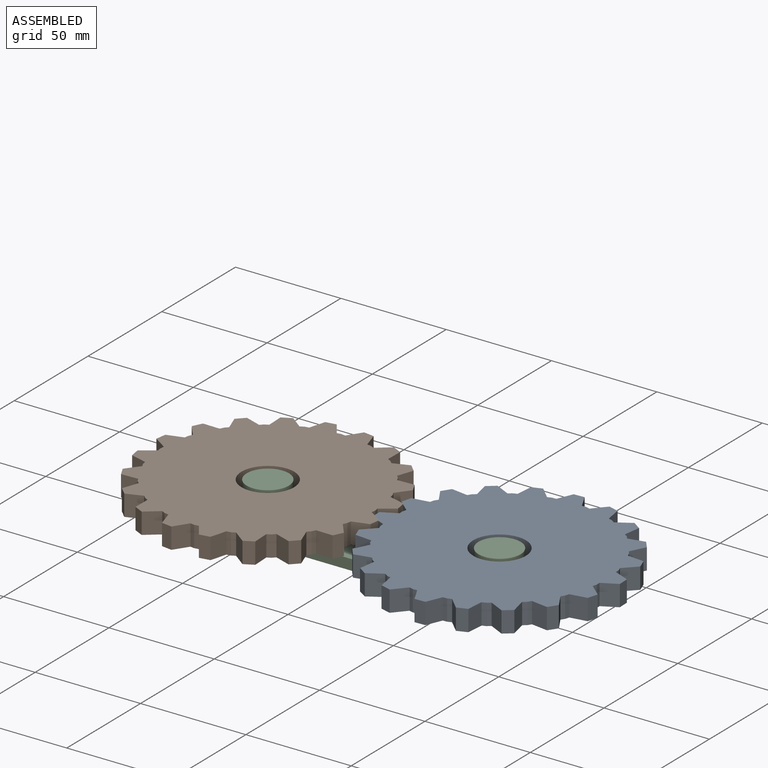
[diagram: assembled view]
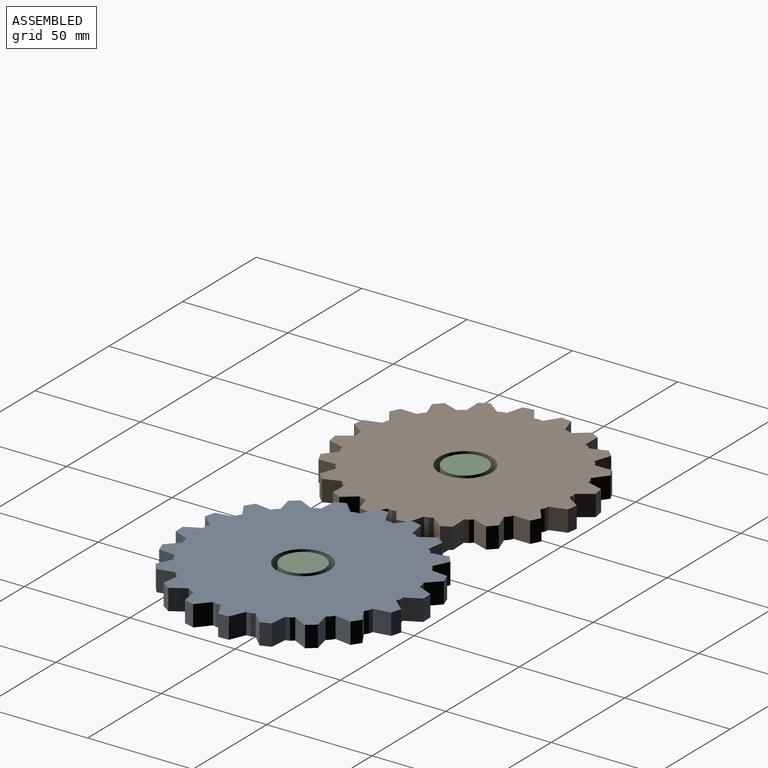
[diagram: assembled view, second angle]
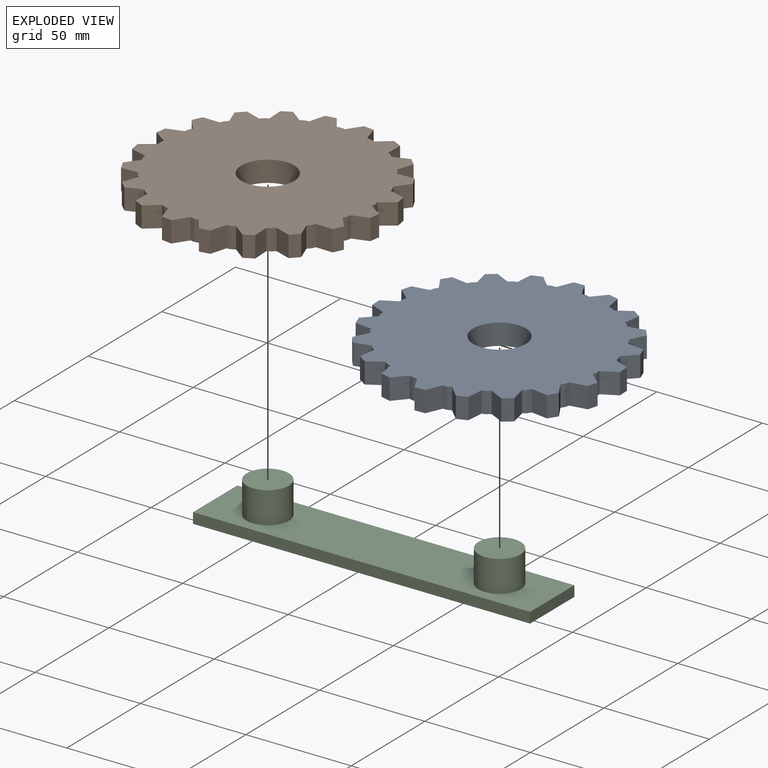
[diagram: exploded view]
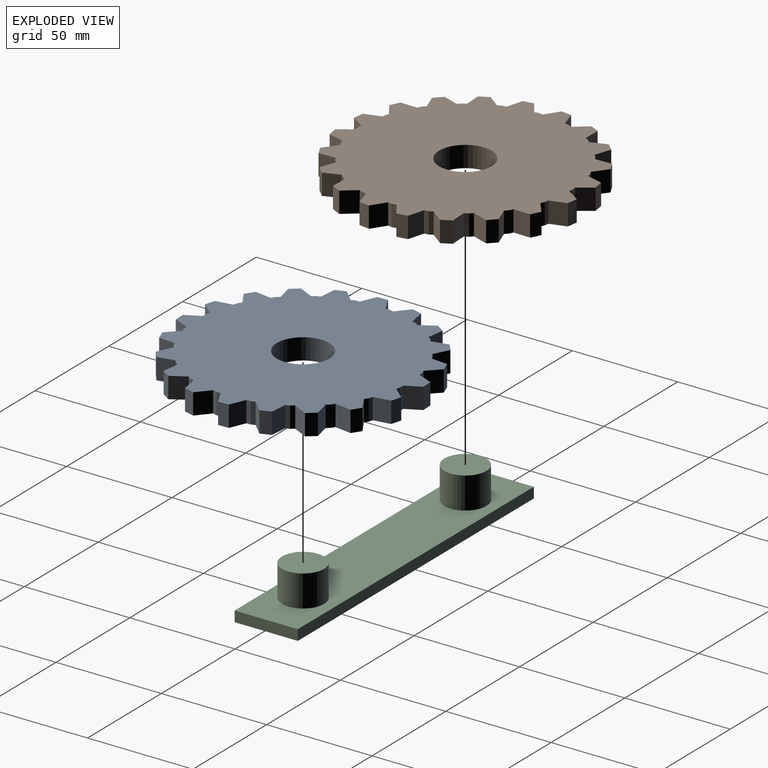
[diagram: exploded view, second angle]
ASSEMBLY  parts=3 mates=2
PART A: 103 faces, bbox 114.4x114.4x10 mm
  f0: plane 10x7.67mm, normal (-0.96,-0.29,0), area 80mm2, adj f1,f99,f101,f102
  f1: plane 10x1.49mm, normal (-0.67,0.74,0), area 20mm2, adj f0,f2,f101,f102
  f2: plane 10x1.73mm, normal (-0.87,0.5,0), area 20mm2, adj f1,f3,f101,f102
  f3: plane 10x7.97mm, normal (0.08,1,0), area 80mm2, adj f2,f4,f101,f102
  f4: plane 10x4.33mm, normal (-0.87,0.5,0), area 50mm2, adj f3,f5,f101,f102
  f5: plane 10x6.58mm, normal (-0.82,-0.57,0), area 80mm2, adj f4,f6,f101,f102
  f6: plane 10x1.73mm, normal (-0.87,0.5,0), area 20mm2, adj f5,f7,f101,f102
  f7: plane 10x1.96mm, normal (-0.98,0.21,0), area 20mm2, adj f6,f8,f101,f102
  f8: plane 10x7.79mm, normal (-0.23,0.97,0), area 80mm2, adj f7,f9,f101,f102
  f9: plane 10x4.89mm, normal (-0.98,0.21,0), area 50mm2, adj f8,f10,f101,f102
  f10: plane 10x6.36mm, normal (-0.61,-0.79,0), area 80mm2, adj f9,f11,f101,f102
  f11: plane 10x1.96mm, normal (-0.98,0.21,0), area 20mm2, adj f10,f12,f101,f102
  f12: plane 10x1.99mm, normal (-0.99,-0.1,0), area 20mm2, adj f11,f13,f101,f102
  f13: plane 10x6.84mm, normal (-0.52,0.86,0), area 80mm2, adj f12,f14,f101,f102
  f14: plane 10x4.97mm, normal (-0.99,-0.1,0), area 50mm2, adj f13,f15,f101,f102
  f15: plane 10x7.55mm, normal (-0.33,-0.94,0), area 80mm2, adj f14,f16,f101,f102
  f16: plane 10x1.99mm, normal (-0.99,-0.1,0), area 20mm2, adj f15,f17,f101,f102
  f17: plane 10x1.83mm, normal (-0.91,-0.41,0), area 20mm2, adj f16,f18,f101,f102
  f18: plane 10x6.06mm, normal (-0.76,0.65,0), area 80mm2, adj f17,f19,f101,f102
  f19: plane 10x4.57mm, normal (-0.91,-0.41,0), area 50mm2, adj f18,f20,f101,f102
  f20: plane 10x8mm, normal (-0.02,-1,0), area 80mm2, adj f19,f21,f101,f102
  f21: plane 10x1.83mm, normal (-0.91,-0.41,0), area 20mm2, adj f20,f22,f101,f102
  f22: plane 10x1.49mm, normal (-0.74,-0.67,0), area 20mm2, adj f21,f23,f101,f102
  f23: plane 10x7.38mm, normal (-0.92,0.39,0), area 80mm2, adj f22,f24,f101,f102
  f24: plane 10x3.72mm, normal (-0.74,-0.67,0), area 50mm2, adj f23,f25,f101,f102
  f25: plane 10x7.67mm, normal (0.29,-0.96,0), area 80mm2, adj f24,f26,f101,f102
  f26: plane 10x1.49mm, normal (-0.74,-0.67,0), area 20mm2, adj f25,f27,f101,f102
  f27: plane 10x1.73mm, normal (-0.5,-0.87,0), area 20mm2, adj f26,f28,f101,f102
  f28: plane 10x7.97mm, normal (-1,0.08,0), area 80mm2, adj f27,f29,f101,f102
  f29: plane 10x4.33mm, normal (-0.5,-0.87,0), area 50mm2, adj f28,f30,f101,f102
  f30: plane 10x6.58mm, normal (0.57,-0.82,0), area 80mm2, adj f29,f31,f101,f102
  f31: plane 10x1.73mm, normal (-0.5,-0.87,0), area 20mm2, adj f30,f32,f101,f102
  f32: plane 10x1.96mm, normal (-0.21,-0.98,0), area 20mm2, adj f31,f33,f101,f102
  f33: plane 10x7.79mm, normal (-0.97,-0.23,0), area 80mm2, adj f32,f34,f101,f102
  f34: plane 10x4.89mm, normal (-0.21,-0.98,0), area 50mm2, adj f33,f35,f101,f102
  f35: plane 10x6.36mm, normal (0.79,-0.61,0), area 80mm2, adj f34,f36,f101,f102
  f36: plane 10x1.96mm, normal (-0.21,-0.98,0), area 20mm2, adj f35,f37,f101,f102
  f37: plane 10x1.99mm, normal (0.1,-0.99,0), area 20mm2, adj f36,f38,f101,f102
  f38: plane 10x6.84mm, normal (-0.86,-0.52,0), area 80mm2, adj f37,f39,f101,f102
  f39: plane 10x4.97mm, normal (0.1,-0.99,0), area 50mm2, adj f38,f40,f101,f102
  f40: plane 10x7.55mm, normal (0.94,-0.33,0), area 80mm2, adj f39,f41,f101,f102
  f41: plane 10x1.99mm, normal (0.1,-0.99,0), area 20mm2, adj f40,f42,f101,f102
  f42: plane 10x1.83mm, normal (0.41,-0.91,0), area 20mm2, adj f41,f43,f101,f102
  f43: plane 10x6.06mm, normal (-0.65,-0.76,0), area 80mm2, adj f42,f44,f101,f102
  f44: plane 10x4.57mm, normal (0.41,-0.91,0), area 50mm2, adj f43,f45,f101,f102
  f45: plane 10x8mm, normal (1,-0.02,0), area 80mm2, adj f44,f46,f101,f102
  f46: plane 10x1.83mm, normal (0.41,-0.91,0), area 20mm2, adj f45,f47,f101,f102
  f47: plane 10x1.49mm, normal (0.67,-0.74,0), area 20mm2, adj f46,f48,f101,f102
  f48: plane 10x7.38mm, normal (-0.39,-0.92,0), area 80mm2, adj f47,f49,f101,f102
  f49: plane 10x3.72mm, normal (0.67,-0.74,0), area 50mm2, adj f48,f50,f101,f102
  f50: plane 10x7.67mm, normal (0.96,0.29,0), area 80mm2, adj f49,f51,f101,f102
  f51: plane 10x1.49mm, normal (0.67,-0.74,0), area 20mm2, adj f50,f52,f101,f102
  f52: plane 10x1.73mm, normal (0.87,-0.5,0), area 20mm2, adj f51,f53,f101,f102
  f53: plane 10x7.97mm, normal (-0.08,-1,0), area 80mm2, adj f52,f54,f101,f102
  f54: plane 10x4.33mm, normal (0.87,-0.5,0), area 50mm2, adj f53,f55,f101,f102
  f55: plane 10x6.58mm, normal (0.82,0.57,0), area 80mm2, adj f54,f56,f101,f102
  f56: plane 10x1.73mm, normal (0.87,-0.5,0), area 20mm2, adj f55,f57,f101,f102
  f57: plane 10x1.96mm, normal (0.98,-0.21,0), area 20mm2, adj f56,f58,f101,f102
  f58: plane 10x7.79mm, normal (0.23,-0.97,0), area 80mm2, adj f57,f59,f101,f102
  f59: plane 10x4.89mm, normal (0.98,-0.21,0), area 50mm2, adj f58,f60,f101,f102
  f60: plane 10x6.36mm, normal (0.61,0.79,0), area 80mm2, adj f59,f61,f101,f102
  f61: plane 10x1.96mm, normal (0.98,-0.21,0), area 20mm2, adj f60,f62,f101,f102
  f62: plane 10x1.99mm, normal (0.99,0.1,0), area 20mm2, adj f61,f63,f101,f102
  f63: plane 10x6.84mm, normal (0.52,-0.86,0), area 80mm2, adj f62,f64,f101,f102
  f64: plane 10x4.97mm, normal (0.99,0.1,0), area 50mm2, adj f63,f65,f101,f102
  f65: plane 10x7.55mm, normal (0.33,0.94,0), area 80mm2, adj f64,f66,f101,f102
  f66: plane 10x1.99mm, normal (0.99,0.1,0), area 20mm2, adj f65,f67,f101,f102
  f67: plane 10x1.83mm, normal (0.91,0.41,0), area 20mm2, adj f66,f68,f101,f102
  f68: plane 10x6.06mm, normal (0.76,-0.65,0), area 80mm2, adj f67,f69,f101,f102
  f69: plane 10x4.57mm, normal (0.91,0.41,0), area 50mm2, adj f68,f70,f101,f102
  f70: plane 10x8mm, normal (0.02,1,0), area 80mm2, adj f69,f71,f101,f102
  f71: plane 10x1.83mm, normal (0.91,0.41,0), area 20mm2, adj f70,f72,f101,f102
  f72: plane 10x1.49mm, normal (0.74,0.67,0), area 20mm2, adj f71,f73,f101,f102
  f73: plane 10x7.38mm, normal (0.92,-0.39,0), area 80mm2, adj f72,f74,f101,f102
  f74: plane 10x3.72mm, normal (0.74,0.67,0), area 50mm2, adj f73,f75,f101,f102
  f75: plane 10x7.67mm, normal (-0.29,0.96,0), area 80mm2, adj f74,f76,f101,f102
  f76: plane 10x1.49mm, normal (0.74,0.67,0), area 20mm2, adj f75,f77,f101,f102
  f77: plane 10x1.73mm, normal (0.5,0.87,0), area 20mm2, adj f76,f78,f101,f102
  f78: plane 10x7.97mm, normal (1,-0.08,0), area 80mm2, adj f77,f79,f101,f102
  f79: plane 10x4.33mm, normal (0.5,0.87,0), area 50mm2, adj f78,f80,f101,f102
  f80: plane 10x6.58mm, normal (-0.57,0.82,0), area 80mm2, adj f79,f81,f101,f102
  f81: plane 10x1.73mm, normal (0.5,0.87,0), area 20mm2, adj f80,f82,f101,f102
  f82: plane 10x1.96mm, normal (0.21,0.98,0), area 20mm2, adj f81,f83,f101,f102
  f83: plane 10x7.79mm, normal (0.97,0.23,0), area 80mm2, adj f82,f84,f101,f102
  f84: plane 10x4.89mm, normal (0.21,0.98,0), area 50mm2, adj f83,f85,f101,f102
  f85: plane 10x6.36mm, normal (-0.79,0.61,0), area 80mm2, adj f84,f86,f101,f102
  f86: plane 10x1.96mm, normal (0.21,0.98,0), area 20mm2, adj f85,f87,f101,f102
  f87: plane 10x1.99mm, normal (-0.1,0.99,0), area 20mm2, adj f86,f88,f101,f102
  f88: plane 10x6.84mm, normal (0.86,0.52,0), area 80mm2, adj f87,f89,f101,f102
  f89: plane 10x4.97mm, normal (-0.1,0.99,0), area 50mm2, adj f88,f90,f101,f102
  f90: plane 10x7.55mm, normal (-0.94,0.33,0), area 80mm2, adj f89,f91,f101,f102
  f91: plane 10x1.99mm, normal (-0.1,0.99,0), area 20mm2, adj f90,f92,f101,f102
  f92: plane 10x1.83mm, normal (-0.41,0.91,0), area 20mm2, adj f91,f93,f101,f102
  f93: plane 10x6.06mm, normal (0.65,0.76,0), area 80mm2, adj f92,f94,f101,f102
  f94: plane 10x4.57mm, normal (-0.41,0.91,0), area 50mm2, adj f93,f95,f101,f102
  f95: plane 10x8mm, normal (-1,0.02,0), area 80mm2, adj f94,f96,f101,f102
  f96: plane 10x1.83mm, normal (-0.41,0.91,0), area 20mm2, adj f95,f97,f101,f102
  f97: plane 10x1.49mm, normal (-0.67,0.74,0), area 20mm2, adj f96,f98,f101,f102
  f98: plane 10x7.38mm, normal (0.39,0.92,0), area 80mm2, adj f97,f99,f101,f102
  f99: plane 10x3.72mm, normal (-0.67,0.74,0), area 50mm2, adj f0,f98,f101,f102
  f100: cylinder r=12.5mm len=25mm, axis (0,0,-1), area 785.4mm2, adj f101,f102
  f101: plane 114.37x114.37mm, normal (0,0,1), area 8646.2mm2, adj f0,f1,f2,f3,f4,f5,f6,f7
  f102: plane 114.37x114.37mm, normal (0,0,-1), area 8646.2mm2, adj f0,f1,f2,f3,f4,f5,f6,f7
PART B: same geometry as A
PART C: 10 faces, bbox 160x30x20 mm
  f0: plane 30x5mm, normal (1,0,0), area 150mm2, adj f1,f3,f4,f5
  f1: plane 160x5mm, normal (0,1,0), area 800mm2, adj f0,f2,f4,f5
  f2: plane 30x5mm, normal (-1,0,0), area 150mm2, adj f1,f3,f4,f5
  f3: plane 160x5mm, normal (0,-1,0), area 800mm2, adj f0,f2,f4,f5
  f4: plane 160x30mm, normal (0,0,1), area 4171.7mm2, adj f0,f1,f2,f3,f6,f8
  f5: plane 160x30mm, normal (0,0,-1), area 4800mm2, adj f0,f1,f2,f3
  f6: cylinder r=10mm len=20mm, axis (0,0,-1), area 942.5mm2, adj f4,f7
  f7: plane 20x20mm, normal (0,0,1), area 314.2mm2, adj f6
  f8: cylinder r=10mm len=20mm, axis (0,0,-1), area 942.5mm2, adj f4,f9
  f9: plane 20x20mm, normal (0,0,1), area 314.2mm2, adj f8
PLACE A rot(axis=(0,0,-1),21.7deg) t=(61.61,5.41,6.63)mm
PLACE B rot(axis=(0,0,1),21.7deg) t=(-48.39,5.41,6.63)mm
PLACE C t=(6.61,5.41,-3.37)mm fixed
MATE revolute C.f6 <-> B.f100  axis (0,0,1) through (-48.39,5.41,16.63)mm
MATE revolute A.f100 <-> C.f8  axis (0,0,-1) through (61.61,5.41,16.63)mm
